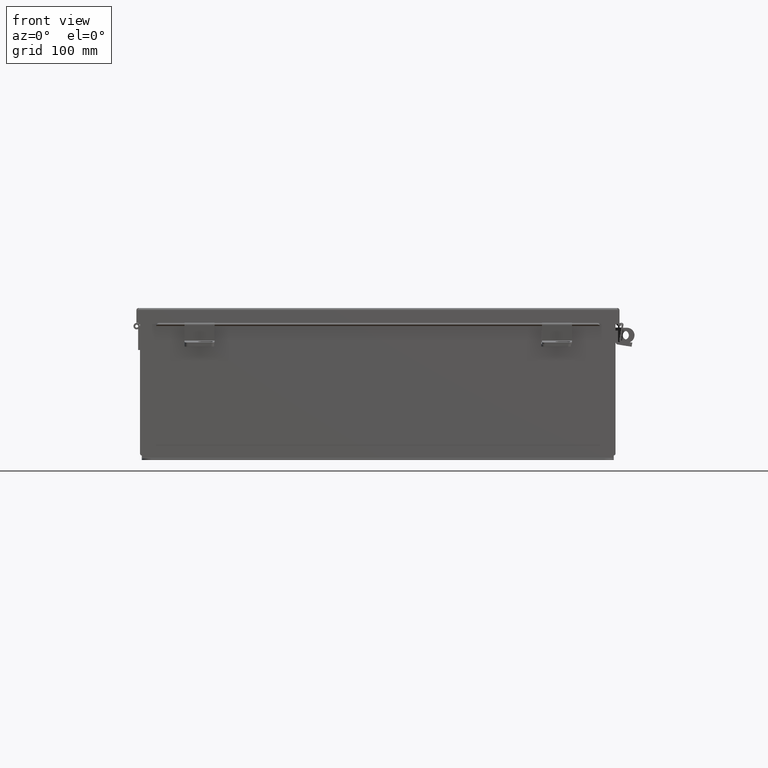
[diagram: clean part render]
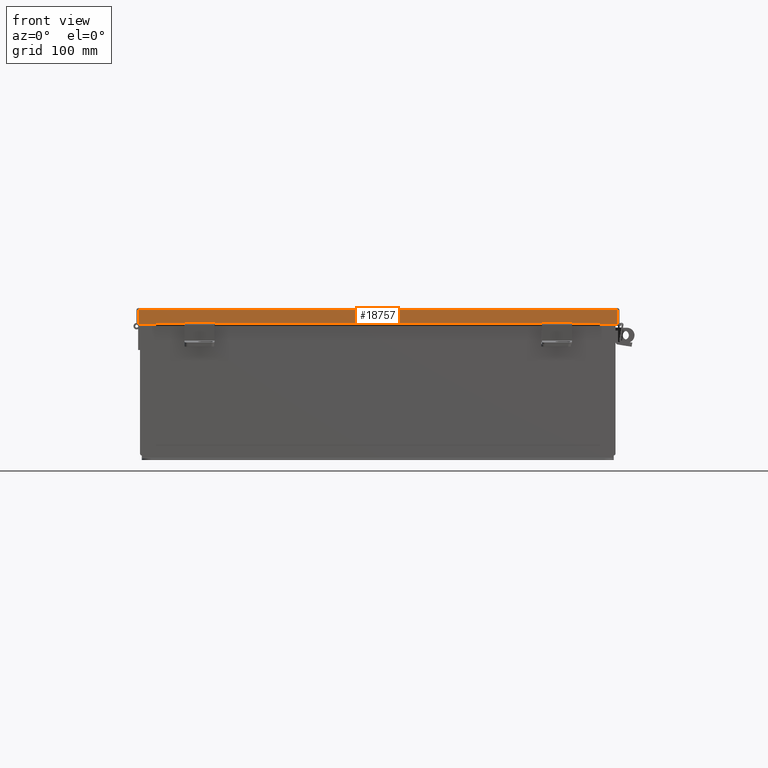
[diagram: same view with one face highlighted and labeled with its STEP entity id]
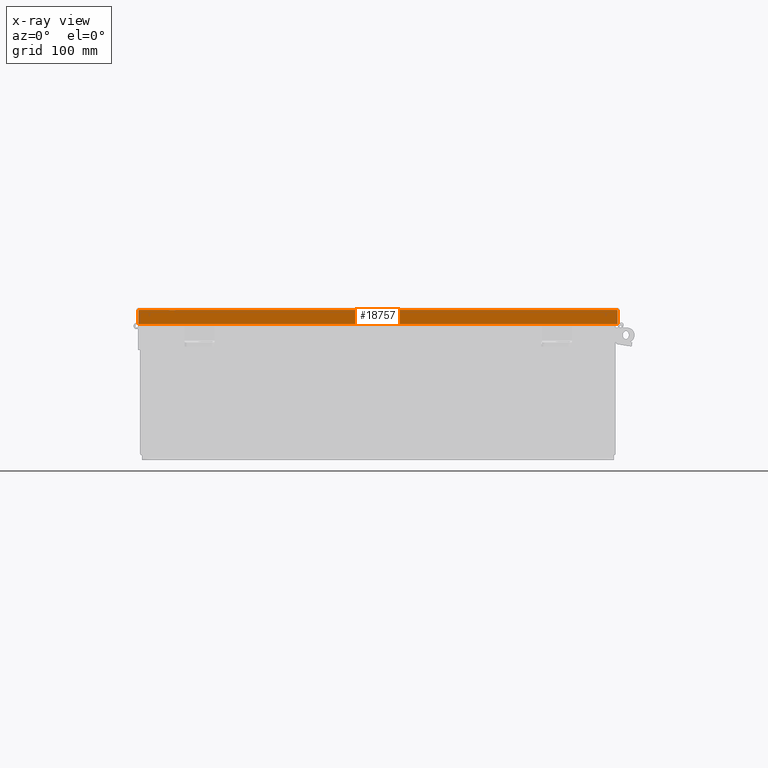
[diagram: x-ray of the same camera — body ghosted, the highlighted face saturated]
A machine part, front view. The second image highlights one B-rep face of the part: STEP entity #18757.
The next image is the same camera in x-ray: the body ghosted, the highlighted face saturated — about 0% of this face is hidden behind the body in this view.
In plain terms, the highlighted planar face has unit normal (0, 1, 0).
Its self-contained STEP definition (entity closure, byte-faithful):
#153 = ORIENTED_EDGE ( 'NONE', *, *, #7278, .F. ) ;
#293 = EDGE_CURVE ( 'NONE', #19369, #2254, #14547, .T. ) ;
#927 = AXIS2_PLACEMENT_3D ( 'NONE', #16602, #18316, #7977 ) ;
#1417 = DIRECTION ( 'NONE',  ( -1.000000000000000000, 1.075927825197002400E-016, 3.362274453740352500E-018 ) ) ;
#2006 = ORIENTED_EDGE ( 'NONE', *, *, #293, .T. ) ;
#2181 = VECTOR ( 'NONE', #8687, 39.37007874015748100 ) ;
#2254 = VERTEX_POINT ( 'NONE', #11471 ) ;
#3637 = EDGE_CURVE ( 'NONE', #20263, #8490, #18188, .T. ) ;
#4401 = VECTOR ( 'NONE', #22239, 39.37007874015748100 ) ;
#5563 = EDGE_CURVE ( 'NONE', #20263, #19369, #17098, .T. ) ;
#6065 = VECTOR ( 'NONE', #8849, 39.37007874015748100 ) ;
#6579 = CARTESIAN_POINT ( 'NONE',  ( -10.07447893218813400, -10.15625000000001400, 0.01300000000000120000 ) ) ;
#7040 = LINE ( 'NONE', #20025, #20806 ) ;
#7278 = EDGE_CURVE ( 'NONE', #19931, #11254, #7040, .T. ) ;
#7341 = VERTEX_POINT ( 'NONE', #17516 ) ;
#7977 = DIRECTION ( 'NONE',  ( -1.000000000000000000, 1.075927825197002200E-016, 0.0000000000000000000 ) ) ;
#8265 = DIRECTION ( 'NONE',  ( 0.0000000000000000000, 0.0000000000000000000, 1.000000000000000000 ) ) ;
#8490 = VERTEX_POINT ( 'NONE', #6579 ) ;
#8687 = DIRECTION ( 'NONE',  ( -0.0000000000000000000, -0.0000000000000000000, 1.000000000000000000 ) ) ;
#8849 = DIRECTION ( 'NONE',  ( 0.0000000000000000000, -1.401985044024106600E-013, 1.000000000000000000 ) ) ;
#8855 = VECTOR ( 'NONE', #18212, 39.37007874015748100 ) ;
#10622 = EDGE_CURVE ( 'NONE', #10847, #2254, #15267, .T. ) ;
#10666 = CARTESIAN_POINT ( 'NONE',  ( 10.07447893218813400, -10.15625000000001400, 0.0000000000000000000 ) ) ;
#10847 = VERTEX_POINT ( 'NONE', #19728 ) ;
#11104 = ORIENTED_EDGE ( 'NONE', *, *, #17690, .T. ) ;
#11254 = VERTEX_POINT ( 'NONE', #19177 ) ;
#11342 = VECTOR ( 'NONE', #18301, 39.37007874015748100 ) ;
#11471 = CARTESIAN_POINT ( 'NONE',  ( 9.324478932188133800, -10.15625000000001400, 0.6122999999999994000 ) ) ;
#11887 = LINE ( 'NONE', #13165, #11342 ) ;
#13016 = EDGE_CURVE ( 'NONE', #8490, #7341, #15991, .T. ) ;
#13165 = CARTESIAN_POINT ( 'NONE',  ( -9.324478932188130300, -10.15625000000001200, 0.5967115427318793200 ) ) ;
#13197 = ORIENTED_EDGE ( 'NONE', *, *, #10622, .F. ) ;
#13203 = CARTESIAN_POINT ( 'NONE',  ( -9.324478932188130300, -10.15625000000001400, 0.6122999999999994000 ) ) ;
#13444 = ORIENTED_EDGE ( 'NONE', *, *, #14605, .F. ) ;
#14166 = LINE ( 'NONE', #17059, #18206 ) ;
#14547 = LINE ( 'NONE', #22180, #8855 ) ;
#14605 = EDGE_CURVE ( 'NONE', #11254, #10847, #11887, .T. ) ;
#14790 = PLANE ( 'NONE',  #927 ) ;
#15158 = CARTESIAN_POINT ( 'NONE',  ( 10.07447893218813400, -10.15625000000001400, 0.6122999999999994000 ) ) ;
#15267 = LINE ( 'NONE', #19207, #6065 ) ;
#15792 = FACE_OUTER_BOUND ( 'NONE', #16537, .T. ) ;
#15991 = LINE ( 'NONE', #20874, #2181 ) ;
#16537 = EDGE_LOOP ( 'NONE', ( #153, #11104, #16622, #22153, #21420, #2006, #13197, #13444 ) ) ;
#16602 = CARTESIAN_POINT ( 'NONE',  ( -1.092739197465705300E-015, -10.15625000000001400, 0.0000000000000000000 ) ) ;
#16622 = ORIENTED_EDGE ( 'NONE', *, *, #13016, .F. ) ;
#17059 = CARTESIAN_POINT ( 'NONE',  ( -1.090604941220655100E-015, -10.15625000000001400, 0.6123000000000005100 ) ) ;
#17098 = LINE ( 'NONE', #10666, #17622 ) ;
#17516 = CARTESIAN_POINT ( 'NONE',  ( -10.07447893218813200, -10.15625000000001400, 0.6123000000000005100 ) ) ;
#17622 = VECTOR ( 'NONE', #8265, 39.37007874015748100 ) ;
#17690 = EDGE_CURVE ( 'NONE', #19931, #7341, #14166, .T. ) ;
#18188 = LINE ( 'NONE', #19451, #4401 ) ;
#18206 = VECTOR ( 'NONE', #1417, 39.37007874015748100 ) ;
#18212 = DIRECTION ( 'NONE',  ( -1.000000000000000000, 1.075927825197002400E-016, 3.362274453740352500E-018 ) ) ;
#18301 = DIRECTION ( 'NONE',  ( 1.000000000000000000, 2.258600338820354400E-033, -0.0000000000000000000 ) ) ;
#18316 = DIRECTION ( 'NONE',  ( 1.075927825197002200E-016, 1.000000000000000000, 0.0000000000000000000 ) ) ;
#18757 = ADVANCED_FACE ( 'NONE', ( #15792 ), #14790, .F. ) ;
#19114 = CARTESIAN_POINT ( 'NONE',  ( 10.07447893218813400, -10.15625000000001400, 0.01300000000000229300 ) ) ;
#19177 = CARTESIAN_POINT ( 'NONE',  ( -9.324478932188130300, -10.15625000000001400, 0.5967115427318793200 ) ) ;
#19207 = CARTESIAN_POINT ( 'NONE',  ( 9.324478932188133800, -10.15625000000001200, 0.5967115427318793200 ) ) ;
#19369 = VERTEX_POINT ( 'NONE', #15158 ) ;
#19451 = CARTESIAN_POINT ( 'NONE',  ( -10.15624999999999600, -10.15625000000001200, 0.01300000000000010700 ) ) ;
#19728 = CARTESIAN_POINT ( 'NONE',  ( 9.324478932188133800, -10.15625000000001400, 0.5967115427318793200 ) ) ;
#19931 = VERTEX_POINT ( 'NONE', #13203 ) ;
#20025 = CARTESIAN_POINT ( 'NONE',  ( -9.324478932188130300, -10.15625000000001400, 0.6122999999999994000 ) ) ;
#20263 = VERTEX_POINT ( 'NONE', #19114 ) ;
#20327 = DIRECTION ( 'NONE',  ( 7.009925220120809400E-014, 1.401985044024161900E-013, -1.000000000000000000 ) ) ;
#20806 = VECTOR ( 'NONE', #20327, 39.37007874015748100 ) ;
#20874 = CARTESIAN_POINT ( 'NONE',  ( -10.07447893218813200, -10.15625000000001400, 0.0000000000000000000 ) ) ;
#21420 = ORIENTED_EDGE ( 'NONE', *, *, #5563, .T. ) ;
#22153 = ORIENTED_EDGE ( 'NONE', *, *, #3637, .F. ) ;
#22180 = CARTESIAN_POINT ( 'NONE',  ( -1.090604941220655100E-015, -10.15625000000001400, 0.6123000000000005100 ) ) ;
#22239 = DIRECTION ( 'NONE',  ( -1.000000000000000000, 1.075927825197002400E-016, -1.075927825197007300E-016 ) ) ;